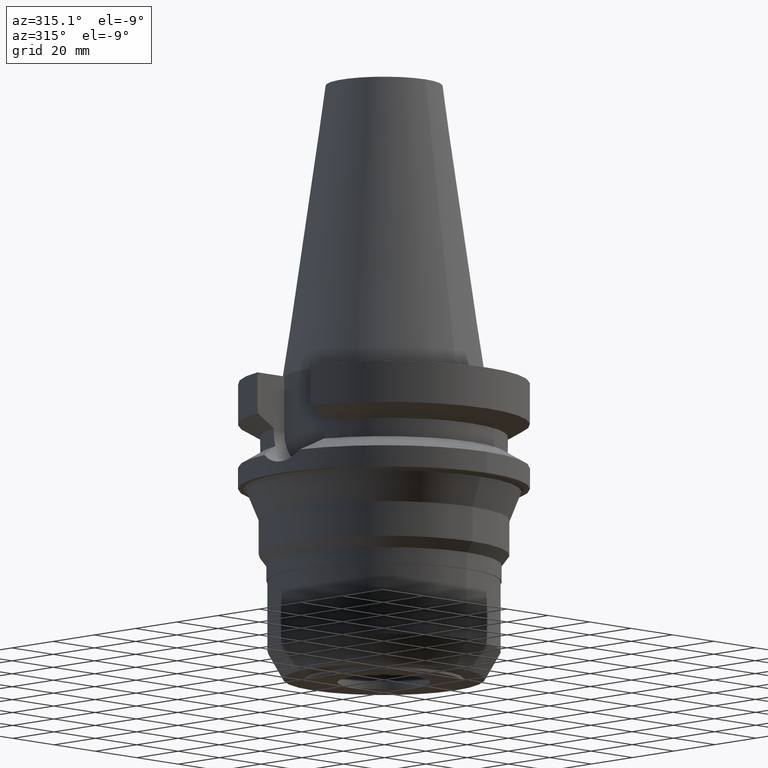
[diagram: clean part render]
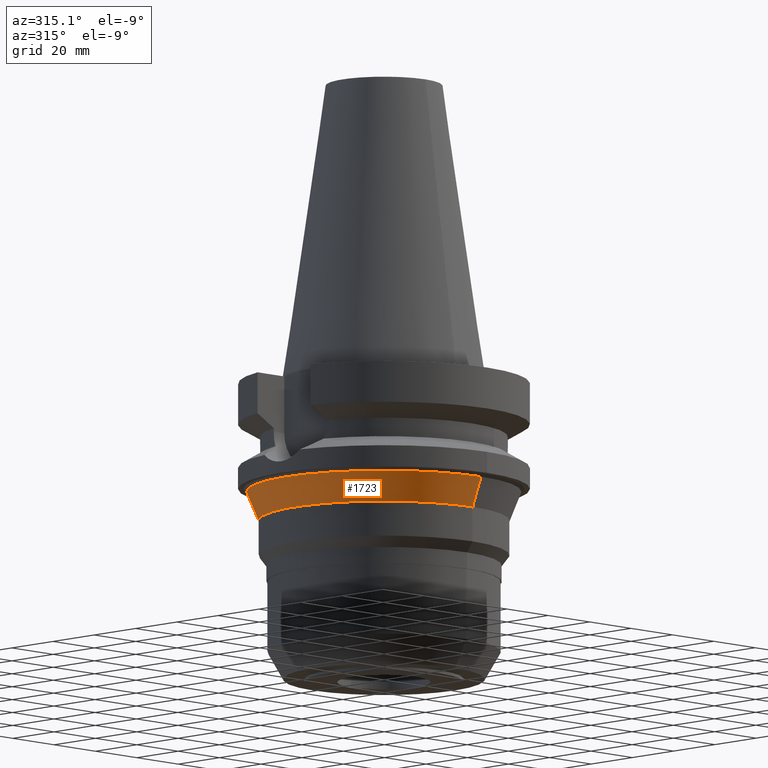
[diagram: same view with one face highlighted and labeled with its STEP entity id]
A machine part, auxiliary view. The second image highlights one B-rep face of the part: STEP entity #1723.
In plain terms, the highlighted conical surface has half-angle 22.249 deg.
Its self-contained STEP definition (entity closure, byte-faithful):
#428=DIRECTION('',(0.E0,3.786324635655E-1,-9.255471125417E-1));
#429=VECTOR('',#428,1.080442028773E1);
#430=CARTESIAN_POINT('',(0.E0,-4.709090427094E1,-3.9E1));
#431=LINE('',#430,#429);
#435=CARTESIAN_POINT('',(0.E0,0.E0,-4.9E1));
#436=DIRECTION('',(0.E0,0.E0,-1.E0));
#437=DIRECTION('',(0.E0,-1.E0,0.E0));
#438=AXIS2_PLACEMENT_3D('',#435,#436,#437);
#443=DIRECTION('',(0.E0,-3.786324635655E-1,-9.255471125417E-1));
#444=VECTOR('',#443,1.080442028773E1);
#445=CARTESIAN_POINT('',(0.E0,4.709090427094E1,-3.9E1));
#446=LINE('',#445,#444);
#480=CARTESIAN_POINT('',(0.E0,0.E0,-3.9E1));
#481=DIRECTION('',(0.E0,0.E0,-1.E0));
#482=DIRECTION('',(0.E0,-1.E0,0.E0));
#483=AXIS2_PLACEMENT_3D('',#480,#481,#482);
#1198=CARTESIAN_POINT('',(0.E0,4.3E1,-4.9E1));
#1199=VERTEX_POINT('',#1198);
#1200=CARTESIAN_POINT('',(0.E0,-4.3E1,-4.9E1));
#1201=VERTEX_POINT('',#1200);
#1202=CARTESIAN_POINT('',(0.E0,4.709090427094E1,-3.9E1));
#1203=VERTEX_POINT('',#1202);
#1204=CARTESIAN_POINT('',(0.E0,-4.709090427094E1,-3.9E1));
#1205=VERTEX_POINT('',#1204);
#1709=CARTESIAN_POINT('',(0.E0,0.E0,-4.4E1));
#1710=DIRECTION('',(0.E0,0.E0,1.E0));
#1711=DIRECTION('',(0.E0,1.E0,0.E0));
#1712=AXIS2_PLACEMENT_3D('',#1709,#1710,#1711);
#1713=CONICAL_SURFACE('',#1712,4.504545213547E1,2.2249E1);
#1715=ORIENTED_EDGE('',*,*,#1714,.F.);
#1717=ORIENTED_EDGE('',*,*,#1716,.F.);
#1719=ORIENTED_EDGE('',*,*,#1718,.T.);
#1720=ORIENTED_EDGE('',*,*,#1702,.T.);
#1721=EDGE_LOOP('',(#1715,#1717,#1719,#1720));
#1722=FACE_OUTER_BOUND('',#1721,.F.);
#439=CIRCLE('',#438,4.3E1);
#484=CIRCLE('',#483,4.709090427094E1);
#1702=EDGE_CURVE('',#1201,#1199,#439,.T.);
#1714=EDGE_CURVE('',#1203,#1199,#446,.T.);
#1716=EDGE_CURVE('',#1205,#1203,#484,.T.);
#1718=EDGE_CURVE('',#1205,#1201,#431,.T.);
#1723=ADVANCED_FACE('',(#1722),#1713,.T.);